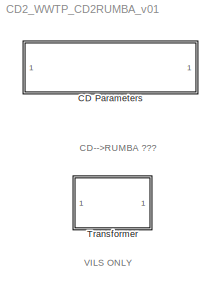
MODEL CD2_WWTP_CD2RUMBA_v01
KIND model
BLOCK [SubSystem] CD Parameters
  FunctionWithSeparateData = off
  MaskCallbackString = ||
  MaskDescription = Block that sets the global parameters required in City Drain 1.0. Following paramters are set without user's input:\n\n- 'Solver' --> 'FixedStepDiscrete'\n- 'TimeSaveName' --> 'cd_time'\n- 'Decimation' --> '1'\n- 'LimitDataPoints' -->  'off'
  MaskDisplay = \nplot(0,0,100,100);\n\ntext(50,65,'CITY DRAIN','HorizontalAlignment','center');\ntext(50,35,'PARAMETERS','HorizontalAlignment','center');\n\n\nimage(imread('CityDrain_SimParam.jpg'))\n\n
  MaskEnableString = on,on,on
  MaskHideContents = off
  MaskIconFrame = on
  MaskIconOpaque = on
  MaskIconRotate = none
  MaskIconUnits = autoscale
  MaskInitialization = % toplevel systems' name --> Plant file name;\ntls=bdroot(gcb); \nset_param(tls, 'Solver', 'FixedStepDiscrete'); \nset_param(tls, 'TimeSaveName', 'cd_time');\nset_param(tls, 'Decimation', '1');\nset_param(tls, 'LimitDataPoints', 'off');\nset_param(tls, 'ScreenColor', 'white');\n\ntstep_char=num2str(t_step); % Setting the discrete time step\nset_param(tls, 'FixedStep', tstep_char); \n\ntstart_char=...<+182ch>
  MaskPromptString = Sampling Time [s]|Start Time [s]|Stop Time [s]
  MaskStyleString = edit,edit,edit
  MaskTabNameString = ,,
  MaskToolTipString = on,on,on
  MaskTunableValueString = on,on,on
  MaskType = City Drain 1.0 - Simulation parameters
  MaskValueString = 300|0|12000
  MaskVarAliasString = ,,
  MaskVariables = t_step=@1;t_start=@2;t_stop=@3;
  MaskVisibilityString = on,on,on
  MinAlgLoopOccurrences = off
  Ports = []
  RTWSystemCode = Auto
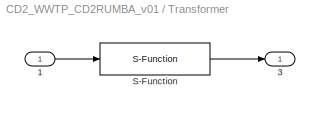
BLOCK [SubSystem] Transformer
  FunctionWithSeparateData = off
  MaskDescription = \n\nFunction used:\nCD2_sfun_trans.m
  MaskDisplay = plot(0,0,100,100);\n\n\ntext(50,60,'WWTP','HorizontalAlignment','center');\ntext(50,40,'Trans','HorizontalAlignment','center');\n\n\nport_label('input',1,'Qi');\nport_label('output',1,'S');\n
  MaskEnableString = on
  MaskHideContents = off
  MaskIconFrame = on
  MaskIconOpaque = on
  MaskIconRotate = none
  MaskIconUnits = autoscale
  MaskInitialization = % reading the toplevel systems' name \n% --> Plant file name;\ntls=bdroot(gcb); \n% Obtaining the fixed sampling time\nt_samp_char=get_param(tls, 'FixedStep');\n% Convertion to numeric value\ntstep = str2num(t_samp_char);
  MaskPromptString = Number of pollutants [ - ]
  MaskStyleString = edit
  MaskToolTipString = on
  MaskTunableValueString = on
  MaskType = WWTP Trans
  MaskValueString = CD2_get_substances_count
  MaskVariables = n_comp=@1;
  MaskVisibilityString = on
  MinAlgLoopOccurrences = off
  Ports = [1, 1]
  RTWSystemCode = Auto
BLOCK [Inport] Transformer/ 1
  IconDisplay = Port number
BLOCK [Outport] Transformer/ 3
  BusOutputAsStruct = off
  IconDisplay = Port number
BLOCK [S-Function] Transformer/S-Function
  FunctionName = CD2_sfun_trans
  Parameters = n_comp,tstep
  Ports = [1, 1]
ANNOTATION (root): CD-->RUMBA ???
ANNOTATION (root): VILS ONLY
LINE Transformer/ 1:1 -> Transformer/S-Function:1
LINE Transformer/S-Function:1 -> Transformer/ 3:1
